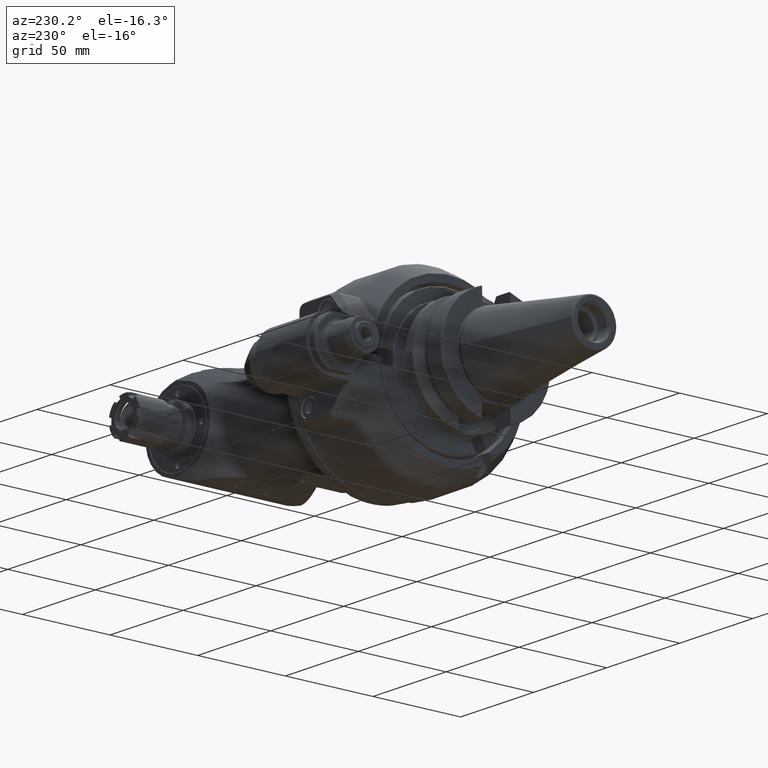
[diagram: clean part render]
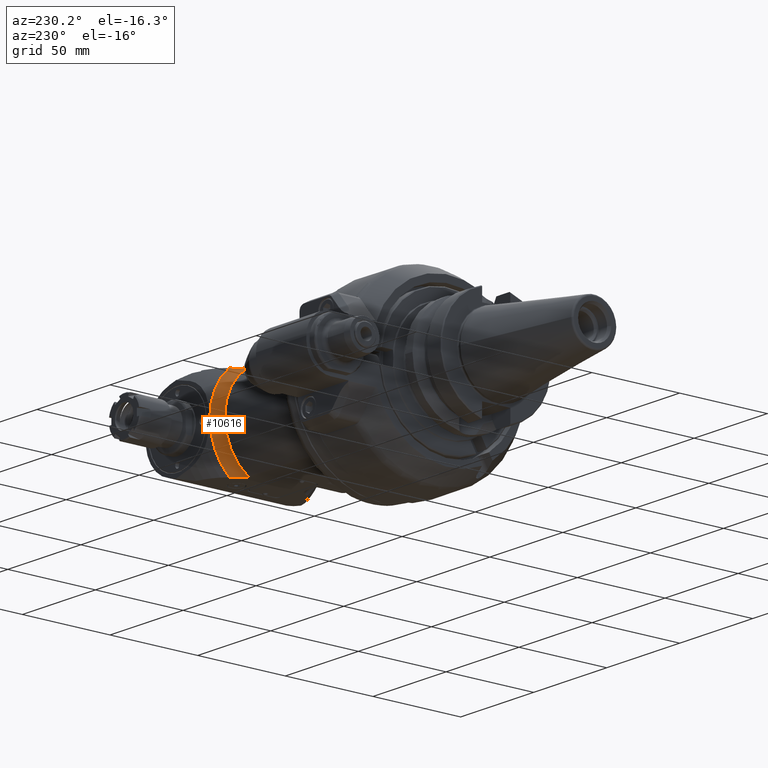
[diagram: same view with one face highlighted and labeled with its STEP entity id]
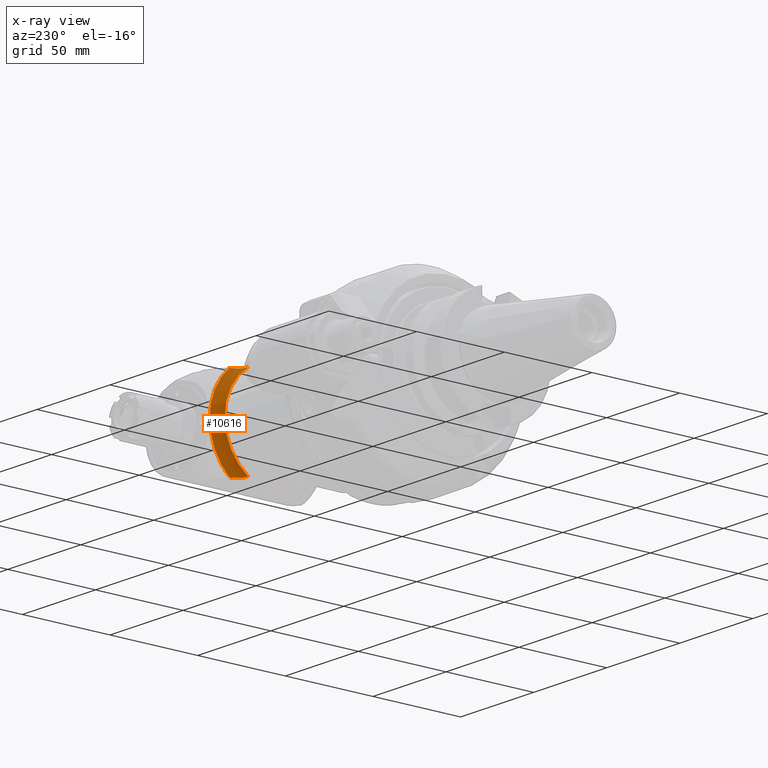
[diagram: x-ray of the same camera — body ghosted, the highlighted face saturated]
A machine part, auxiliary view. The second image highlights one B-rep face of the part: STEP entity #10616.
The next image is the same camera in x-ray: the body ghosted, the highlighted face saturated — about 0% of this face is hidden behind the body in this view.
In plain terms, the highlighted toroidal blend (fillet) surface has major radius 37 mm and minor (blend) radius 7 mm.
Its self-contained STEP definition (entity closure, byte-faithful):
#328=TOROIDAL_SURFACE('',#11459,1.45669291338583,0.275590551181102);
#617=CIRCLE('',#11440,1.18110236220472);
#631=CIRCLE('',#11460,1.31889763779528);
#632=CIRCLE('',#11461,1.31889763779528);
#1335=FACE_OUTER_BOUND('',#2031,.T.);
#2031=EDGE_LOOP('',(#7515,#7516,#7517,#7518,#7519));
#2671=B_SPLINE_CURVE_WITH_KNOTS('',3,(#16308,#16309,#16310,#16311,#16312,
#16313,#16314,#16315,#16316,#16317,#16318,#16319,#16320,#16321),
 .UNSPECIFIED.,.F.,.F.,(4,2,2,2,2,2,4),(-3.32581345360814,-3.21328851460942,
-3.0207654607387,-2.86863153258841,-2.71649760443813,-2.60114781955608,
-2.49776209313838),.UNSPECIFIED.);
#2679=B_SPLINE_CURVE_WITH_KNOTS('',3,(#16510,#16511,#16512,#16513,#16514,
#16515,#16516,#16517,#16518,#16519,#16520,#16521,#16522,#16523),
 .UNSPECIFIED.,.F.,.F.,(4,2,2,2,2,2,4),(-2.49776209313838,-2.39437636672067,
-2.27902658183863,-2.12689265368834,-1.97475872553806,-1.78223567166734,
-1.66971073266859),.UNSPECIFIED.);
#4455=VERTEX_POINT('',#16290);
#4456=VERTEX_POINT('',#16292);
#4459=VERTEX_POINT('',#16307);
#4496=VERTEX_POINT('',#16506);
#4505=VERTEX_POINT('',#16541);
#5596=EDGE_CURVE('',#4456,#4455,#617,.T.);
#5600=EDGE_CURVE('',#4459,#4456,#2671,.T.);
#5642=EDGE_CURVE('',#4455,#4496,#2679,.T.);
#5651=EDGE_CURVE('',#4505,#4496,#631,.T.);
#5652=EDGE_CURVE('',#4505,#4459,#632,.T.);
#7515=ORIENTED_EDGE('',*,*,#5600,.T.);
#7516=ORIENTED_EDGE('',*,*,#5596,.T.);
#7517=ORIENTED_EDGE('',*,*,#5642,.T.);
#7518=ORIENTED_EDGE('',*,*,#5651,.F.);
#7519=ORIENTED_EDGE('',*,*,#5652,.T.);
#10616=ADVANCED_FACE('',(#1335),#328,.F.);
#11440=AXIS2_PLACEMENT_3D('',#16293,#12991,#12992);
#11459=AXIS2_PLACEMENT_3D('',#16540,#13046,#13047);
#11460=AXIS2_PLACEMENT_3D('',#16542,#13048,#13049);
#11461=AXIS2_PLACEMENT_3D('',#16543,#13050,#13051);
#12991=DIRECTION('center_axis',(1.,0.,0.));
#12992=DIRECTION('ref_axis',(0.,0.552770798392605,-0.833333333333308));
#13046=DIRECTION('center_axis',(1.,0.,0.));
#13047=DIRECTION('ref_axis',(0.,1.,-1.22464679914735E-16));
#13048=DIRECTION('center_axis',(1.,0.,0.));
#13049=DIRECTION('ref_axis',(0.,1.,0.));
#13050=DIRECTION('center_axis',(-1.,0.,0.));
#13051=DIRECTION('ref_axis',(0.,1.,0.));
#16290=CARTESIAN_POINT('',(3.06841819756575,0.65287889573937,0.984251968503937));
#16292=CARTESIAN_POINT('',(3.06841819756575,0.65287889573937,-0.984251968503937));
#16293=CARTESIAN_POINT('Origin',(3.06841819756575,0.,0.));
#16307=CARTESIAN_POINT('',(3.30708661593151,0.877917445707822,-0.98425196850393));
#16308=CARTESIAN_POINT('Ctrl Pts',(3.30708661593155,0.877917445707806,-0.984251968503937));
#16309=CARTESIAN_POINT('Ctrl Pts',(3.30145779166591,0.863270882555492,-0.984251968503937));
#16310=CARTESIAN_POINT('Ctrl Pts',(3.29502340907971,0.848428125438352,-0.984251968503937));
#16311=CARTESIAN_POINT('Ctrl Pts',(3.27573238339717,0.809125987775893,-0.984251968503937));
#16312=CARTESIAN_POINT('Ctrl Pts',(3.2614893538218,0.785361258397562,-0.984251968503937));
#16313=CARTESIAN_POINT('Ctrl Pts',(3.23497722642745,0.748715494358018,-0.984251968503937));
#16314=CARTESIAN_POINT('Ctrl Pts',(3.22095371881188,0.73185490526931,-0.984251968503937));
#16315=CARTESIAN_POINT('Ctrl Pts',(3.18979127494494,0.701538237520644,-0.984251968503937));
#16316=CARTESIAN_POINT('Ctrl Pts',(3.17261385643593,0.688121739829411,-0.984251968503937));
#16317=CARTESIAN_POINT('Ctrl Pts',(3.14233134145754,0.670368449200618,-0.984251968503937));
#16318=CARTESIAN_POINT('Ctrl Pts',(3.12572633502088,0.663002810841997,-0.984251968503937));
#16319=CARTESIAN_POINT('Ctrl Pts',(3.09809981633641,0.655206773917916,-0.984251968503937));
#16320=CARTESIAN_POINT('Ctrl Pts',(3.08198587819799,0.652878895739252,-0.984251968503937));
#16321=CARTESIAN_POINT('Ctrl Pts',(3.06841819756575,0.652878895739252,-0.984251968503937));
#16506=CARTESIAN_POINT('',(3.30708661593151,0.877917445707828,0.98425196850393));
#16510=CARTESIAN_POINT('Ctrl Pts',(3.06841819756575,0.652878895739252,0.984251968503937));
#16511=CARTESIAN_POINT('Ctrl Pts',(3.08198587819799,0.652878895739252,0.984251968503937));
#16512=CARTESIAN_POINT('Ctrl Pts',(3.09809981633641,0.655206773917916,0.984251968503937));
#16513=CARTESIAN_POINT('Ctrl Pts',(3.12572633502088,0.663002810841997,0.984251968503937));
#16514=CARTESIAN_POINT('Ctrl Pts',(3.14233134145754,0.670368449200618,0.984251968503937));
#16515=CARTESIAN_POINT('Ctrl Pts',(3.17261385643593,0.688121739829411,0.984251968503937));
#16516=CARTESIAN_POINT('Ctrl Pts',(3.18979127494494,0.701538237520645,0.984251968503937));
#16517=CARTESIAN_POINT('Ctrl Pts',(3.22095371881188,0.731854905269311,0.984251968503937));
#16518=CARTESIAN_POINT('Ctrl Pts',(3.23497722642745,0.748715494358018,0.984251968503937));
#16519=CARTESIAN_POINT('Ctrl Pts',(3.2614893538218,0.785361258397562,0.984251968503937));
#16520=CARTESIAN_POINT('Ctrl Pts',(3.27573238339717,0.809125987775892,0.984251968503937));
#16521=CARTESIAN_POINT('Ctrl Pts',(3.29502340907971,0.848428125438353,0.984251968503937));
#16522=CARTESIAN_POINT('Ctrl Pts',(3.30145779166591,0.863270882555497,0.984251968503937));
#16523=CARTESIAN_POINT('Ctrl Pts',(3.30708661593155,0.877917445707813,0.984251968503937));
#16540=CARTESIAN_POINT('Origin',(3.06841819756575,0.,0.));
#16541=CARTESIAN_POINT('',(3.3070866159315,1.31889763779528,1.04903026434016E-15));
#16542=CARTESIAN_POINT('Origin',(3.3070866159315,0.,0.));
#16543=CARTESIAN_POINT('Origin',(3.3070866159315,0.,0.));